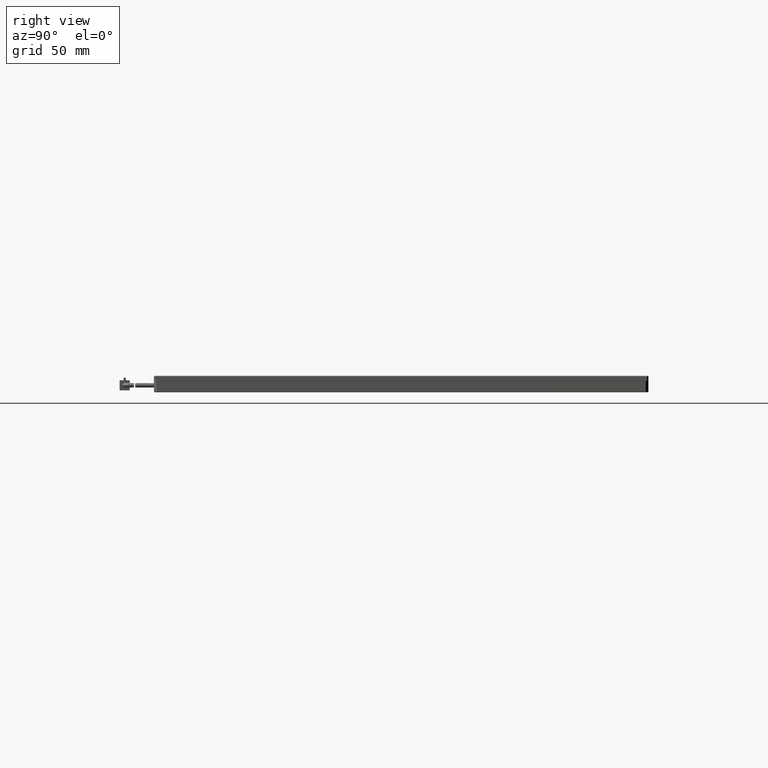
[diagram: clean part render]
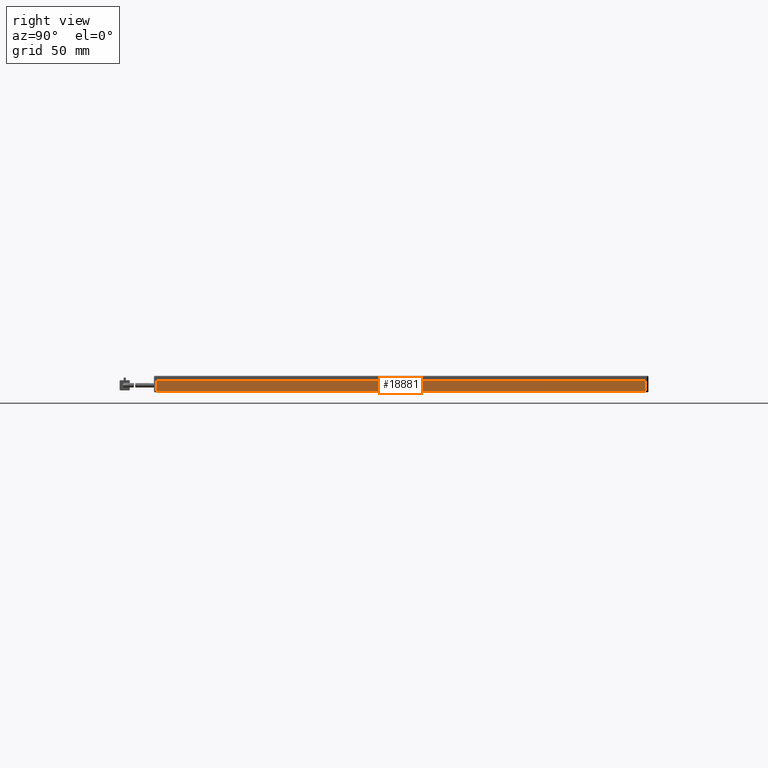
[diagram: same view with one face highlighted and labeled with its STEP entity id]
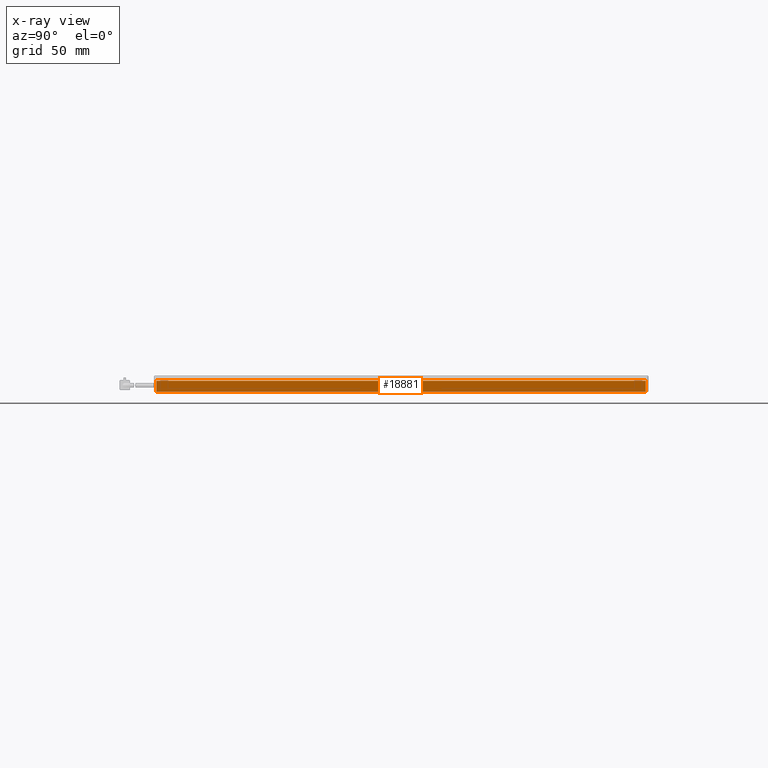
[diagram: x-ray of the same camera — body ghosted, the highlighted face saturated]
A machine part, right view. The second image highlights one B-rep face of the part: STEP entity #18881.
The next image is the same camera in x-ray: the body ghosted, the highlighted face saturated — about 0% of this face is hidden behind the body in this view.
In plain terms, the highlighted planar face has unit normal (-1, 0, 0).
Its self-contained STEP definition (entity closure, byte-faithful):
#779 = VERTEX_POINT ( 'NONE', #8691 ) ;
#1368 = CARTESIAN_POINT ( 'NONE',  ( 160.8515982014623100, -172.5770270270269300, 4.250000000000000000 ) ) ;
#1461 = VECTOR ( 'NONE', #14010, 1000.000000000000000 ) ;
#2783 = ORIENTED_EDGE ( 'NONE', *, *, #13142, .F. ) ;
#3481 = CARTESIAN_POINT ( 'NONE',  ( 160.8515982014623100, -172.5770270270269300, -4.250000000000001800 ) ) ;
#4737 = CARTESIAN_POINT ( 'NONE',  ( 160.8515982014623100, -174.5770270270269300, -4.250000000000000000 ) ) ;
#5593 = ORIENTED_EDGE ( 'NONE', *, *, #17718, .F. ) ;
#5901 = VERTEX_POINT ( 'NONE', #3481 ) ;
#6011 = VECTOR ( 'NONE', #19803, 1000.000000000000000 ) ;
#6102 = DIRECTION ( 'NONE',  ( -1.000000000000000000, 0.0000000000000000000, 0.0000000000000000000 ) ) ;
#6440 = CARTESIAN_POINT ( 'NONE',  ( 160.8515982014623100, 213.4229729729729600, 4.250000000000000000 ) ) ;
#6565 = FACE_OUTER_BOUND ( 'NONE', #16093, .T. ) ;
#7049 = LINE ( 'NONE', #7080, #1461 ) ;
#7080 = CARTESIAN_POINT ( 'NONE',  ( 160.8515982014623100, -172.5770270270269300, 4.250000000000000000 ) ) ;
#7719 = DIRECTION ( 'NONE',  ( 0.0000000000000000000, 1.000000000000000000, -0.0000000000000000000 ) ) ;
#8108 = VERTEX_POINT ( 'NONE', #1368 ) ;
#8691 = CARTESIAN_POINT ( 'NONE',  ( 160.8515982014623100, 213.4229729729730100, 4.250000000000000000 ) ) ;
#8763 = LINE ( 'NONE', #17946, #9546 ) ;
#9546 = VECTOR ( 'NONE', #7719, 1000.000000000000000 ) ;
#9700 = PLANE ( 'NONE',  #14554 ) ;
#10282 = LINE ( 'NONE', #4737, #6011 ) ;
#13093 = DIRECTION ( 'NONE',  ( 0.0000000000000000000, 0.0000000000000000000, 1.000000000000000000 ) ) ;
#13142 = EDGE_CURVE ( 'NONE', #5901, #8108, #7049, .T. ) ;
#13364 = DIRECTION ( 'NONE',  ( -0.0000000000000000000, -0.0000000000000000000, -1.000000000000000000 ) ) ;
#14010 = DIRECTION ( 'NONE',  ( 0.0000000000000000000, 0.0000000000000000000, 1.000000000000000000 ) ) ;
#14346 = ORIENTED_EDGE ( 'NONE', *, *, #15703, .T. ) ;
#14554 = AXIS2_PLACEMENT_3D ( 'NONE', #19605, #6102, #13093 ) ;
#15117 = ORIENTED_EDGE ( 'NONE', *, *, #16147, .F. ) ;
#15295 = VECTOR ( 'NONE', #13364, 1000.000000000000000 ) ;
#15379 = CARTESIAN_POINT ( 'NONE',  ( 160.8515982014623100, 213.4229729729730100, -4.250000000000003600 ) ) ;
#15703 = EDGE_CURVE ( 'NONE', #5901, #18525, #10282, .T. ) ;
#16093 = EDGE_LOOP ( 'NONE', ( #14346, #15117, #5593, #2783 ) ) ;
#16147 = EDGE_CURVE ( 'NONE', #779, #18525, #19541, .T. ) ;
#17718 = EDGE_CURVE ( 'NONE', #8108, #779, #8763, .T. ) ;
#17946 = CARTESIAN_POINT ( 'NONE',  ( 160.8515982014623100, -174.5770270270269300, 4.250000000000000000 ) ) ;
#18525 = VERTEX_POINT ( 'NONE', #15379 ) ;
#18881 = ADVANCED_FACE ( 'NONE', ( #6565 ), #9700, .F. ) ;
#19541 = LINE ( 'NONE', #6440, #15295 ) ;
#19605 = CARTESIAN_POINT ( 'NONE',  ( 160.8515982014623100, -174.5770270270269300, 4.250000000000000000 ) ) ;
#19803 = DIRECTION ( 'NONE',  ( 0.0000000000000000000, 1.000000000000000000, -0.0000000000000000000 ) ) ;